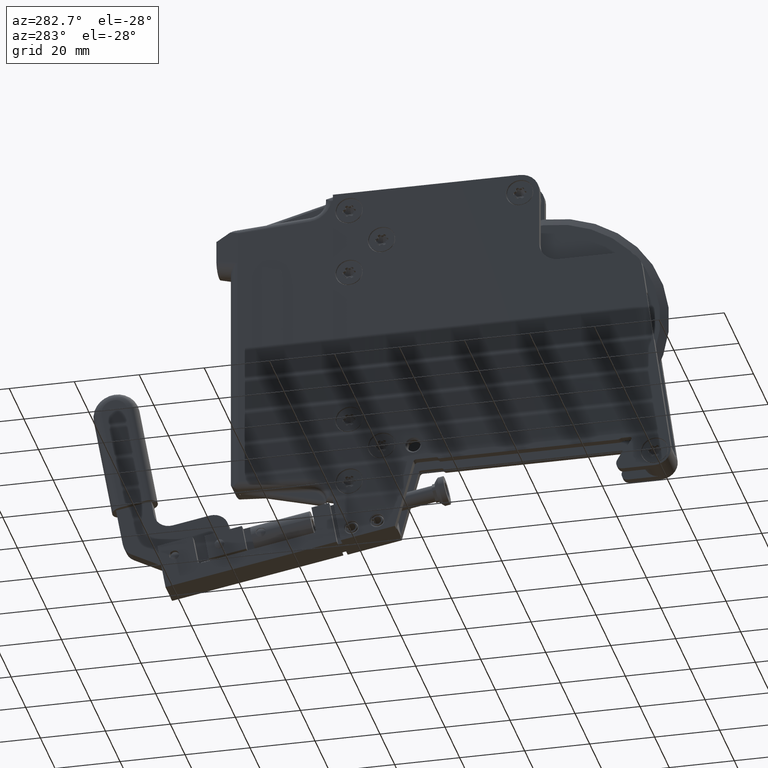
[diagram: clean part render]
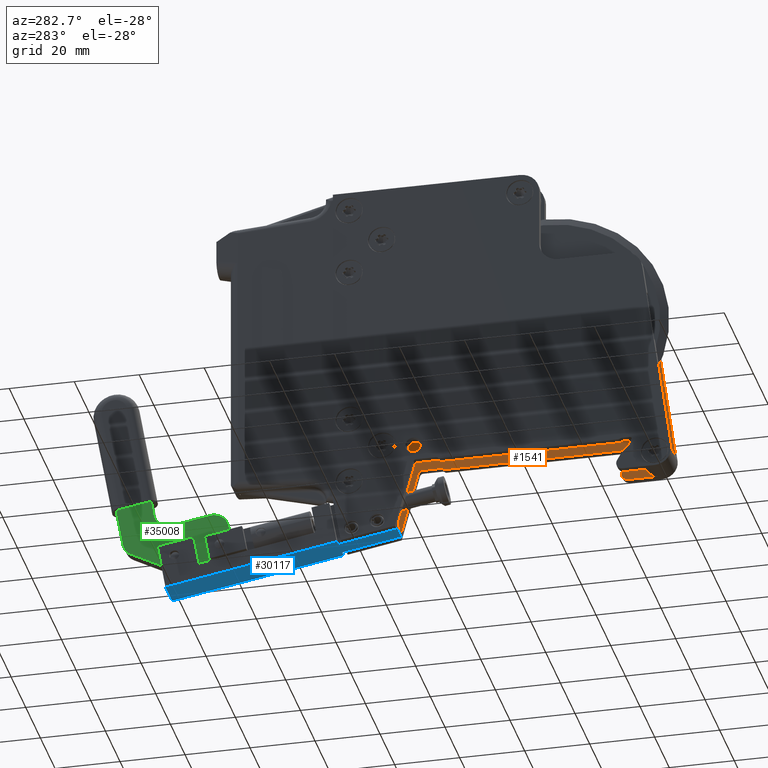
[diagram: same view with three faces highlighted in distinct colors, each labeled with its STEP entity id]
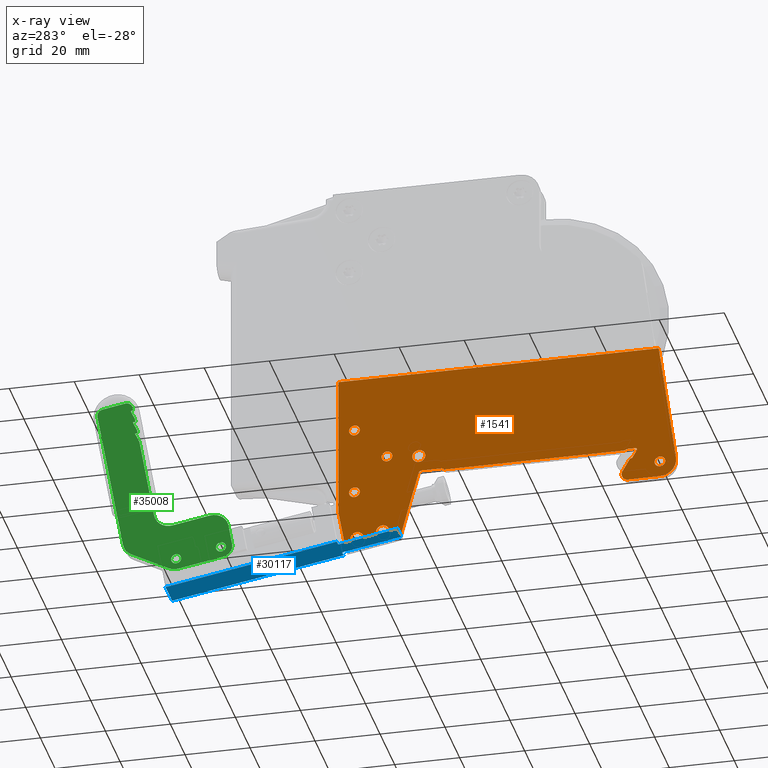
[diagram: x-ray of the same camera — body ghosted, the three highlighted faces saturated]
A machine part, auxiliary view with three faces highlighted in distinct colors.
The next image is the same camera in x-ray (body ghosted, the three faces saturated) — at least one of them is partly hidden behind the body in this view.
Their STEP definitions:

[orange] entity #1541 — the highlighted planar face has unit normal (-1, -0, 0).
#8 = ORIENTED_EDGE ( 'NONE', *, *, #22051, .F. ) ;
#268 = DIRECTION ( 'NONE',  ( 0.000000000000000000, 0.000000000000000000, 1.000000000000000000 ) ) ;
#385 = AXIS2_PLACEMENT_3D ( 'NONE', #3936, #27068, #30373 ) ;
#457 = DIRECTION ( 'NONE',  ( -1.000000000000000000, -0.000000000000000000, -0.000000000000000000 ) ) ;
#741 = CARTESIAN_POINT ( 'NONE',  ( 0.2889763779527562138, 0.6689019225503620714, -1.377952755905511362 ) ) ;
#758 = CARTESIAN_POINT ( 'NONE',  ( 0.2889763779527562693, 0.2856194123966036003, -1.643353580901476318 ) ) ;
#780 = CIRCLE ( 'NONE', #18923, 0.07874015748031448769 ) ;
#808 = CARTESIAN_POINT ( 'NONE',  ( 0.2889763779527562693, 0.01142160758973211065, -1.614173228346457156 ) ) ;
#904 = CARTESIAN_POINT ( 'NONE',  ( 0.2889763779527562693, 0.01142160758973210719, -1.653543307086614567 ) ) ;
#1005 = VECTOR ( 'NONE', #28239, 39.37007874015748143 ) ;
#1008 = VERTEX_POINT ( 'NONE', #20690 ) ;
#1045 = CARTESIAN_POINT ( 'NONE',  ( 0.2889763779527562693, -2.623945153298113731, -0.3149606299212593385 ) ) ;
#1067 = CIRCLE ( 'NONE', #28027, 0.06496062992125924140 ) ;
#1086 = CARTESIAN_POINT ( 'NONE',  ( 0.2889763779527562693, -2.638184691622865063, -2.027559055118111075 ) ) ;
#1212 = VECTOR ( 'NONE', #32743, 39.37007874015748143 ) ;
#1238 = CARTESIAN_POINT ( 'NONE',  ( 0.2889763779527562693, 0.2475908365584512660, -1.653543307086614567 ) ) ;
#1536 = CARTESIAN_POINT ( 'NONE',  ( 0.2889763779527562138, 1.062602709951936841, -0.9842519685039368138 ) ) ;
#1541 = ADVANCED_FACE ( 'NONE', ( #9224, #11978, #8856, #18199, #23943, #2540, #27039, #36033 ), #35852, .T. ) ;
#1778 = ORIENTED_EDGE ( 'NONE', *, *, #12190, .F. ) ;
#2306 = AXIS2_PLACEMENT_3D ( 'NONE', #22747, #31124, #36999 ) ;
#2540 = FACE_BOUND ( 'NONE', #22940, .T. ) ;
#2747 = ORIENTED_EDGE ( 'NONE', *, *, #15168, .F. ) ;
#2811 = VERTEX_POINT ( 'NONE', #4850 ) ;
#2992 = EDGE_CURVE ( 'NONE', #24464, #1008, #4977, .T. ) ;
#3785 = AXIS2_PLACEMENT_3D ( 'NONE', #33414, #457, #268 ) ;
#3936 = CARTESIAN_POINT ( 'NONE',  ( 0.2889763779527562693, -2.638184691622865063, -1.830708661417324024 ) ) ;
#4073 = LINE ( 'NONE', #1086, #8324 ) ;
#4108 = EDGE_LOOP ( 'NONE', ( #20633, #1778 ) ) ;
#4200 = LINE ( 'NONE', #4403, #9346 ) ;
#4294 = EDGE_CURVE ( 'NONE', #33097, #2811, #37797, .T. ) ;
#4353 = CARTESIAN_POINT ( 'NONE',  ( 0.2889763779527562693, 0.2475908365584514326, -0.3149606299212597271 ) ) ;
#4403 = CARTESIAN_POINT ( 'NONE',  ( 0.2889763779527562693, -2.202751620756724815, -1.633858267716535195 ) ) ;
#4410 = CIRCLE ( 'NONE', #3785, 0.06496062992125924140 ) ;
#4842 = EDGE_CURVE ( 'NONE', #14592, #24464, #4073, .T. ) ;
#4850 = CARTESIAN_POINT ( 'NONE',  ( 0.2889763779527562693, 0.2856194123966036558, -1.643353580901476318 ) ) ;
#4854 = VERTEX_POINT ( 'NONE', #35025 ) ;
#4932 = DIRECTION ( 'NONE',  ( -1.000000000000000000, -0.000000000000000000, -0.000000000000000000 ) ) ;
#4977 = CIRCLE ( 'NONE', #6225, 0.07874015748031476525 ) ;
#5161 = VERTEX_POINT ( 'NONE', #21453 ) ;
#5268 = EDGE_CURVE ( 'NONE', #13410, #33681, #26512, .T. ) ;
#5271 = VECTOR ( 'NONE', #16262, 39.37007874015748854 ) ;
#5406 = DIRECTION ( 'NONE',  ( 0.000000000000000000, 0.000000000000000000, 1.000000000000000000 ) ) ;
#5748 = DIRECTION ( 'NONE',  ( 0.000000000000000000, 0.000000000000000000, 1.000000000000000000 ) ) ;
#5907 = CARTESIAN_POINT ( 'NONE',  ( 0.2889763779527562138, 0.7223177986098473502, -2.451550973718666704 ) ) ;
#6003 = AXIS2_PLACEMENT_3D ( 'NONE', #33198, #21273, #21467 ) ;
#6037 = CARTESIAN_POINT ( 'NONE',  ( 0.2889763779527562693, 0.2475908365584510162, -1.614173228346457156 ) ) ;
#6210 = DIRECTION ( 'NONE',  ( -1.000000000000000000, -0.000000000000000000, -0.000000000000000000 ) ) ;
#6225 = AXIS2_PLACEMENT_3D ( 'NONE', #23208, #31780, #14393 ) ;
#6348 = CARTESIAN_POINT ( 'NONE',  ( 0.2889763779527562693, -2.486530308592621363, 0.6627967955023754687 ) ) ;
#6383 = VERTEX_POINT ( 'NONE', #18654 ) ;
#6418 = ORIENTED_EDGE ( 'NONE', *, *, #18498, .F. ) ;
#6750 = CIRCLE ( 'NONE', #9250, 0.06496062992125924140 ) ;
#6891 = CARTESIAN_POINT ( 'NONE',  ( 0.2889763779527562693, 1.259453103652724337, -2.047244094488188448 ) ) ;
#6897 = LINE ( 'NONE', #18238, #14403 ) ;
#6923 = VECTOR ( 'NONE', #22043, 39.37007874015748143 ) ;
#6971 = CARTESIAN_POINT ( 'NONE',  ( 0.2889763779527562138, 1.062602709951936841, -1.875984251968503269 ) ) ;
#7371 = ORIENTED_EDGE ( 'NONE', *, *, #38140, .F. ) ;
#7404 = CARTESIAN_POINT ( 'NONE',  ( 0.2889763779527562693, -2.202751620756724815, -1.633858267716535195 ) ) ;
#7481 = EDGE_LOOP ( 'NONE', ( #8814, #7568 ) ) ;
#7568 = ORIENTED_EDGE ( 'NONE', *, *, #35563, .F. ) ;
#7717 = VECTOR ( 'NONE', #21726, 39.37007874015748143 ) ;
#7751 = DIRECTION ( 'NONE',  ( 0.000000000000000000, 0.000000000000000000, 1.000000000000000000 ) ) ;
#7997 = AXIS2_PLACEMENT_3D ( 'NONE', #9801, #10000, #18385 ) ;
#8042 = VERTEX_POINT ( 'NONE', #28019 ) ;
#8324 = VECTOR ( 'NONE', #13127, 39.37007874015748143 ) ;
#8380 = CARTESIAN_POINT ( 'NONE',  ( 0.2889763779527562138, 0.6689019225503620714, -1.312992125984252079 ) ) ;
#8455 = EDGE_CURVE ( 'NONE', #20851, #32388, #19563, .T. ) ;
#8631 = ORIENTED_EDGE ( 'NONE', *, *, #4842, .F. ) ;
#8635 = LINE ( 'NONE', #26446, #16686 ) ;
#8676 = CARTESIAN_POINT ( 'NONE',  ( 0.2889763779527562138, 0.7223177986098473502, -2.294070658758037506 ) ) ;
#8814 = ORIENTED_EDGE ( 'NONE', *, *, #36766, .F. ) ;
#8850 = EDGE_CURVE ( 'NONE', #13885, #8042, #9788, .T. ) ;
#8856 = FACE_BOUND ( 'NONE', #4108, .T. ) ;
#8904 = CARTESIAN_POINT ( 'NONE',  ( 0.2889763779527562693, -2.301608388249768211, -1.744763279453062088 ) ) ;
#9043 = DIRECTION ( 'NONE',  ( 0.000000000000000000, 0.000000000000000000, 1.000000000000000000 ) ) ;
#9224 = FACE_BOUND ( 'NONE', #29717, .T. ) ;
#9250 = AXIS2_PLACEMENT_3D ( 'NONE', #30185, #12376, #36626 ) ;
#9264 = DIRECTION ( 'NONE',  ( -0.000000000000000000, 0.9848077530122085754, -0.1736481776669268062 ) ) ;
#9321 = VERTEX_POINT ( 'NONE', #10682 ) ;
#9346 = VECTOR ( 'NONE', #30636, 39.37007874015748854 ) ;
#9482 = VERTEX_POINT ( 'NONE', #21408 ) ;
#9654 = VERTEX_POINT ( 'NONE', #23524 ) ;
#9788 = LINE ( 'NONE', #7404, #7717 ) ;
#9801 = CARTESIAN_POINT ( 'NONE',  ( 0.2889763779527562138, 0.7223177986098473502, -2.372810816238352327 ) ) ;
#9853 = DIRECTION ( 'NONE',  ( -1.000000000000000000, -0.000000000000000000, -0.000000000000000000 ) ) ;
#9869 = VERTEX_POINT ( 'NONE', #808 ) ;
#9925 = CARTESIAN_POINT ( 'NONE',  ( 0.2889763779527562138, 1.062602709951936841, -1.746062992125984925 ) ) ;
#9927 = ORIENTED_EDGE ( 'NONE', *, *, #13558, .F. ) ;
#10000 = DIRECTION ( 'NONE',  ( -1.000000000000000000, -0.000000000000000000, -0.000000000000000000 ) ) ;
#10047 = CARTESIAN_POINT ( 'NONE',  ( 0.2889763779527562693, -2.274718124395743502, -1.751968503937007871 ) ) ;
#10396 = ORIENTED_EDGE ( 'NONE', *, *, #2992, .F. ) ;
#10435 = DIRECTION ( 'NONE',  ( 0.000000000000000000, -0.1391731009600580549, -0.9902680687415712502 ) ) ;
#10565 = VERTEX_POINT ( 'NONE', #9925 ) ;
#10647 = EDGE_CURVE ( 'NONE', #1008, #34249, #10894, .T. ) ;
#10682 = CARTESIAN_POINT ( 'NONE',  ( 0.2889763779527562693, -2.340636068515820067, -1.618110236220472453 ) ) ;
#10699 = DIRECTION ( 'NONE',  ( -1.000000000000000000, -0.000000000000000000, -0.000000000000000000 ) ) ;
#10894 = LINE ( 'NONE', #31424, #30286 ) ;
#11514 = VERTEX_POINT ( 'NONE', #6971 ) ;
#11721 = ORIENTED_EDGE ( 'NONE', *, *, #20412, .F. ) ;
#11839 = LINE ( 'NONE', #8904, #34574 ) ;
#11978 = FACE_BOUND ( 'NONE', #24182, .T. ) ;
#12027 = DIRECTION ( 'NONE',  ( 0.000000000000000000, -0.5000000000000088818, 0.8660254037844336006 ) ) ;
#12121 = CIRCLE ( 'NONE', #15209, 0.07874015748031448769 ) ;
#12190 = EDGE_CURVE ( 'NONE', #31608, #9482, #15485, .T. ) ;
#12195 = EDGE_LOOP ( 'NONE', ( #7371, #29761, #14352, #35822, #6418, #33977, #9927, #15316, #17777, #26138, #11721, #25547, #31510, #14916, #36954, #10396, #8631, #17247, #27770 ) ) ;
#12370 = VECTOR ( 'NONE', #5406, 39.37007874015748143 ) ;
#12372 = LINE ( 'NONE', #20818, #1212 ) ;
#12376 = DIRECTION ( 'NONE',  ( -1.000000000000000000, -0.000000000000000000, -0.000000000000000000 ) ) ;
#12409 = CARTESIAN_POINT ( 'NONE',  ( 0.2889763779527562138, 1.062602709951936841, -1.811023622047244208 ) ) ;
#12489 = CARTESIAN_POINT ( 'NONE',  ( 0.2889763779527562693, -2.340636068515820067, -1.637795275590551158 ) ) ;
#12578 = CARTESIAN_POINT ( 'NONE',  ( 0.2889763779527562138, 1.062602709951936841, -0.9192913385826774197 ) ) ;
#12734 = CARTESIAN_POINT ( 'NONE',  ( 0.2889763779527562693, -2.251987798837095767, -2.027559055118109743 ) ) ;
#12893 = EDGE_CURVE ( 'NONE', #37586, #13885, #4200, .T. ) ;
#12920 = DIRECTION ( 'NONE',  ( 0.000000000000000000, 0.000000000000000000, 1.000000000000000000 ) ) ;
#13127 = DIRECTION ( 'NONE',  ( 0.000000000000000000, 1.000000000000000000, 2.122115463404056574E-15 ) ) ;
#13208 = EDGE_CURVE ( 'NONE', #10565, #11514, #1067, .T. ) ;
#13311 = EDGE_CURVE ( 'NONE', #36682, #34480, #31858, .T. ) ;
#13410 = VERTEX_POINT ( 'NONE', #36329 ) ;
#13558 = EDGE_CURVE ( 'NONE', #9869, #33097, #23031, .T. ) ;
#13629 = CIRCLE ( 'NONE', #7997, 0.07874015748031448769 ) ;
#13631 = DIRECTION ( 'NONE',  ( 0.000000000000000000, -0.5000000000000045519, 0.8660254037844359321 ) ) ;
#13885 = VERTEX_POINT ( 'NONE', #28813 ) ;
#14123 = ORIENTED_EDGE ( 'NONE', *, *, #17944, .F. ) ;
#14126 = VECTOR ( 'NONE', #10435, 39.37007874015748854 ) ;
#14352 = ORIENTED_EDGE ( 'NONE', *, *, #29832, .F. ) ;
#14393 = DIRECTION ( 'NONE',  ( 0.000000000000000000, 0.000000000000000000, -1.000000000000000000 ) ) ;
#14403 = VECTOR ( 'NONE', #9264, 39.37007874015748854 ) ;
#14592 = VERTEX_POINT ( 'NONE', #22354 ) ;
#14641 = VERTEX_POINT ( 'NONE', #19973 ) ;
#14880 = AXIS2_PLACEMENT_3D ( 'NONE', #29382, #20597, #9043 ) ;
#14916 = ORIENTED_EDGE ( 'NONE', *, *, #33821, .F. ) ;
#15153 = ORIENTED_EDGE ( 'NONE', *, *, #13208, .F. ) ;
#15168 = EDGE_CURVE ( 'NONE', #11514, #10565, #4410, .T. ) ;
#15209 = AXIS2_PLACEMENT_3D ( 'NONE', #30661, #25039, #34388 ) ;
#15224 = EDGE_CURVE ( 'NONE', #9654, #9321, #33173, .T. ) ;
#15257 = CARTESIAN_POINT ( 'NONE',  ( 0.2889763779527562693, -2.274718124395743502, -1.751968503937007871 ) ) ;
#15316 = ORIENTED_EDGE ( 'NONE', *, *, #17609, .F. ) ;
#15485 = CIRCLE ( 'NONE', #34256, 0.07874015748031448769 ) ;
#15680 = AXIS2_PLACEMENT_3D ( 'NONE', #12489, #6210, #36366 ) ;
#16221 = CARTESIAN_POINT ( 'NONE',  ( 0.2889763779527562138, 0.2830751508968187835, -1.417322834645668994 ) ) ;
#16262 = DIRECTION ( 'NONE',  ( 0.000000000000000000, -0.9659258262890678681, 0.2588190451025223493 ) ) ;
#16290 = LINE ( 'NONE', #758, #1005 ) ;
#16321 = DIRECTION ( 'NONE',  ( -1.000000000000000000, -0.000000000000000000, -0.000000000000000000 ) ) ;
#16473 = CARTESIAN_POINT ( 'NONE',  ( 0.2889763779527562693, -2.833119350823961380, -1.803312381700776124 ) ) ;
#16686 = VECTOR ( 'NONE', #23546, 39.37007874015748143 ) ;
#16702 = CIRCLE ( 'NONE', #2306, 0.06496062992125924140 ) ;
#16855 = EDGE_CURVE ( 'NONE', #26005, #6383, #12121, .T. ) ;
#17247 = ORIENTED_EDGE ( 'NONE', *, *, #35653, .F. ) ;
#17609 = EDGE_CURVE ( 'NONE', #8042, #9869, #34822, .T. ) ;
#17777 = ORIENTED_EDGE ( 'NONE', *, *, #8850, .F. ) ;
#17924 = AXIS2_PLACEMENT_3D ( 'NONE', #904, #37186, #31508 ) ;
#17944 = EDGE_CURVE ( 'NONE', #28964, #26622, #30382, .T. ) ;
#18180 = DIRECTION ( 'NONE',  ( 0.000000000000000000, 0.000000000000000000, 1.000000000000000000 ) ) ;
#18199 = FACE_BOUND ( 'NONE', #26108, .T. ) ;
#18219 = VERTEX_POINT ( 'NONE', #23024 ) ;
#18238 = CARTESIAN_POINT ( 'NONE',  ( 0.2889763779527562693, 1.163653405472534486, -2.590551181102362044 ) ) ;
#18385 = DIRECTION ( 'NONE',  ( 0.000000000000000000, 0.000000000000000000, 1.000000000000000000 ) ) ;
#18498 = EDGE_CURVE ( 'NONE', #2811, #18219, #16290, .T. ) ;
#18573 = VERTEX_POINT ( 'NONE', #16473 ) ;
#18583 = DIRECTION ( 'NONE',  ( -1.000000000000000000, -0.000000000000000000, -0.000000000000000000 ) ) ;
#18654 = CARTESIAN_POINT ( 'NONE',  ( 0.2889763779527562138, 0.2830751508968187835, -1.496062992125983371 ) ) ;
#18776 = ORIENTED_EDGE ( 'NONE', *, *, #24770, .F. ) ;
#18923 = AXIS2_PLACEMENT_3D ( 'NONE', #27021, #21142, #18180 ) ;
#19563 = CIRCLE ( 'NONE', #37692, 0.07874015748031448769 ) ;
#19837 = CARTESIAN_POINT ( 'NONE',  ( 0.2889763779527562138, -2.638184691622866396, -1.895669291338582196 ) ) ;
#19953 = CIRCLE ( 'NONE', #31175, 0.07874015748031448769 ) ;
#19973 = CARTESIAN_POINT ( 'NONE',  ( 0.2889763779527562138, 0.6689019225503620714, -1.442913385826770645 ) ) ;
#20412 = EDGE_CURVE ( 'NONE', #9321, #37586, #12372, .T. ) ;
#20597 = DIRECTION ( 'NONE',  ( -1.000000000000000000, -0.000000000000000000, 0.000000000000000000 ) ) ;
#20633 = ORIENTED_EDGE ( 'NONE', *, *, #26426, .F. ) ;
#20690 = CARTESIAN_POINT ( 'NONE',  ( 0.2889763779527562693, -2.183796822161156115, -1.909448818897637290 ) ) ;
#20818 = CARTESIAN_POINT ( 'NONE',  ( 0.2889763779527562693, -2.340636068515820067, -1.618110236220472453 ) ) ;
#20851 = VERTEX_POINT ( 'NONE', #8676 ) ;
#21142 = DIRECTION ( 'NONE',  ( -1.000000000000000000, -0.000000000000000000, -0.000000000000000000 ) ) ;
#21273 = DIRECTION ( 'NONE',  ( -1.000000000000000000, -0.000000000000000000, -0.000000000000000000 ) ) ;
#21408 = CARTESIAN_POINT ( 'NONE',  ( 0.2889763779527562138, 1.032493468849913221, -2.348762998180691675 ) ) ;
#21453 = CARTESIAN_POINT ( 'NONE',  ( 0.2889763779527562693, 1.163653405472534486, -2.590551181102362044 ) ) ;
#21467 = DIRECTION ( 'NONE',  ( 0.000000000000000000, 0.000000000000000000, 1.000000000000000000 ) ) ;
#21726 = DIRECTION ( 'NONE',  ( 0.000000000000000000, 1.000000000000000000, 0.000000000000000000 ) ) ;
#21974 = ORIENTED_EDGE ( 'NONE', *, *, #16855, .F. ) ;
#22043 = DIRECTION ( 'NONE',  ( 0.000000000000000000, -1.000000000000000000, 1.293946271955896930E-16 ) ) ;
#22051 = EDGE_CURVE ( 'NONE', #33681, #13410, #16702, .T. ) ;
#22354 = CARTESIAN_POINT ( 'NONE',  ( 0.2889763779527562693, -2.638184691622865063, -2.027559055118111075 ) ) ;
#22636 = CARTESIAN_POINT ( 'NONE',  ( 0.2889763779527562138, -2.638184691622866396, -1.830708661417322913 ) ) ;
#22655 = CARTESIAN_POINT ( 'NONE',  ( 0.2889763779527562693, 0.01142160758973210719, -1.614173228346457156 ) ) ;
#22747 = CARTESIAN_POINT ( 'NONE',  ( 0.2889763779527562138, -2.638184691622866396, -1.830708661417322913 ) ) ;
#22835 = ORIENTED_EDGE ( 'NONE', *, *, #30714, .F. ) ;
#22940 = EDGE_LOOP ( 'NONE', ( #15153, #2747 ) ) ;
#23024 = CARTESIAN_POINT ( 'NONE',  ( 0.2889763779527562693, 0.5084647614241869507, -2.475023745702846334 ) ) ;
#23031 = LINE ( 'NONE', #22655, #34270 ) ;
#23208 = CARTESIAN_POINT ( 'NONE',  ( 0.2889763779527562693, -2.251987798837095767, -1.948818897637795367 ) ) ;
#23273 = EDGE_CURVE ( 'NONE', #18219, #5161, #6897, .T. ) ;
#23524 = CARTESIAN_POINT ( 'NONE',  ( 0.2889763779527562693, -2.357683812684805424, -1.647637795275591177 ) ) ;
#23546 = DIRECTION ( 'NONE',  ( 0.000000000000000000, 0.1736481776669307475, 0.9848077530122080203 ) ) ;
#23791 = VERTEX_POINT ( 'NONE', #8380 ) ;
#23943 = FACE_OUTER_BOUND ( 'NONE', #12195, .T. ) ;
#24182 = EDGE_LOOP ( 'NONE', ( #21974, #22835 ) ) ;
#24464 = VERTEX_POINT ( 'NONE', #12734 ) ;
#24770 = EDGE_CURVE ( 'NONE', #26622, #28964, #31941, .T. ) ;
#25039 = DIRECTION ( 'NONE',  ( -1.000000000000000000, -0.000000000000000000, -0.000000000000000000 ) ) ;
#25169 = LINE ( 'NONE', #4353, #6923 ) ;
#25188 = ORIENTED_EDGE ( 'NONE', *, *, #29988, .F. ) ;
#25310 = LINE ( 'NONE', #6348, #14126 ) ;
#25547 = ORIENTED_EDGE ( 'NONE', *, *, #15224, .F. ) ;
#25560 = CARTESIAN_POINT ( 'NONE',  ( 0.2889763779527562138, 0.7223177986098473502, -2.372810816238352327 ) ) ;
#25661 = ORIENTED_EDGE ( 'NONE', *, *, #5268, .F. ) ;
#25698 = DIRECTION ( 'NONE',  ( -1.000000000000000000, -0.000000000000000000, -0.000000000000000000 ) ) ;
#25726 = DIRECTION ( 'NONE',  ( 0.000000000000000000, 0.000000000000000000, 1.000000000000000000 ) ) ;
#25733 = EDGE_CURVE ( 'NONE', #4854, #9654, #11839, .T. ) ;
#26005 = VERTEX_POINT ( 'NONE', #33823 ) ;
#26108 = EDGE_LOOP ( 'NONE', ( #26126, #25188 ) ) ;
#26126 = ORIENTED_EDGE ( 'NONE', *, *, #8455, .F. ) ;
#26138 = ORIENTED_EDGE ( 'NONE', *, *, #12893, .F. ) ;
#26426 = EDGE_CURVE ( 'NONE', #9482, #31608, #780, .T. ) ;
#26446 = CARTESIAN_POINT ( 'NONE',  ( 0.2889763779527562693, 1.163653405472534486, -2.590551181102362044 ) ) ;
#26512 = CIRCLE ( 'NONE', #35896, 0.06496062992125924140 ) ;
#26622 = VERTEX_POINT ( 'NONE', #35349 ) ;
#27021 = CARTESIAN_POINT ( 'NONE',  ( 0.2889763779527562138, 1.032493468849913221, -2.427503155661006051 ) ) ;
#27039 = FACE_BOUND ( 'NONE', #7481, .T. ) ;
#27068 = DIRECTION ( 'NONE',  ( 1.000000000000000000, 0.000000000000000000, 0.000000000000000000 ) ) ;
#27277 = DIRECTION ( 'NONE',  ( -1.000000000000000000, -0.000000000000000000, -0.000000000000000000 ) ) ;
#27630 = EDGE_CURVE ( 'NONE', #37393, #18573, #25310, .T. ) ;
#27770 = ORIENTED_EDGE ( 'NONE', *, *, #27630, .F. ) ;
#28019 = CARTESIAN_POINT ( 'NONE',  ( 0.2889763779527562693, -0.02267388074823777078, -1.633858267716535195 ) ) ;
#28027 = AXIS2_PLACEMENT_3D ( 'NONE', #12409, #27277, #5748 ) ;
#28239 = DIRECTION ( 'NONE',  ( 0.000000000000000000, 0.2588190451025181305, -0.9659258262890689783 ) ) ;
#28435 = EDGE_LOOP ( 'NONE', ( #14123, #18776 ) ) ;
#28500 = DIRECTION ( 'NONE',  ( -1.000000000000000000, -0.000000000000000000, 0.000000000000000000 ) ) ;
#28527 = CIRCLE ( 'NONE', #385, 0.1968503937007870241 ) ;
#28813 = CARTESIAN_POINT ( 'NONE',  ( 0.2889763779527562693, -2.202751620756724815, -1.633858267716535195 ) ) ;
#28964 = VERTEX_POINT ( 'NONE', #12578 ) ;
#29013 = CARTESIAN_POINT ( 'NONE',  ( 0.2889763779527562138, 1.032493468849913221, -2.427503155661006051 ) ) ;
#29104 = CARTESIAN_POINT ( 'NONE',  ( 0.2889763779527562693, 1.259453103652724337, -2.047244094488188448 ) ) ;
#29169 = CARTESIAN_POINT ( 'NONE',  ( 0.2889763779527562138, 1.032493468849913221, -2.506243313141320872 ) ) ;
#29244 = DIRECTION ( 'NONE',  ( 0.000000000000000000, 1.000000000000000000, 0.000000000000000000 ) ) ;
#29382 = CARTESIAN_POINT ( 'NONE',  ( 0.2889763779527562693, 0.2475908365584512660, -1.653543307086614567 ) ) ;
#29717 = EDGE_LOOP ( 'NONE', ( #25661, #8 ) ) ;
#29761 = ORIENTED_EDGE ( 'NONE', *, *, #13311, .F. ) ;
#29832 = EDGE_CURVE ( 'NONE', #5161, #36682, #8635, .T. ) ;
#29988 = EDGE_CURVE ( 'NONE', #32388, #20851, #13629, .T. ) ;
#30185 = CARTESIAN_POINT ( 'NONE',  ( 0.2889763779527562138, 0.6689019225503620714, -1.377952755905511362 ) ) ;
#30286 = VECTOR ( 'NONE', #13631, 39.37007874015748854 ) ;
#30373 = DIRECTION ( 'NONE',  ( 0.000000000000000000, 0.000000000000000000, -1.000000000000000000 ) ) ;
#30382 = CIRCLE ( 'NONE', #6003, 0.06496062992125938018 ) ;
#30383 = AXIS2_PLACEMENT_3D ( 'NONE', #741, #9853, #35882 ) ;
#30636 = DIRECTION ( 'NONE',  ( -0.000000000000000000, 0.9205048534524431503, -0.3907311284892670544 ) ) ;
#30661 = CARTESIAN_POINT ( 'NONE',  ( 0.2889763779527562138, 0.2830751508968187835, -1.417322834645668994 ) ) ;
#30714 = EDGE_CURVE ( 'NONE', #6383, #26005, #19953, .T. ) ;
#30856 = DIRECTION ( 'NONE',  ( 0.000000000000000000, 0.000000000000000000, 1.000000000000000000 ) ) ;
#31124 = DIRECTION ( 'NONE',  ( -1.000000000000000000, -0.000000000000000000, -0.000000000000000000 ) ) ;
#31175 = AXIS2_PLACEMENT_3D ( 'NONE', #16221, #18583, #12920 ) ;
#31361 = DIRECTION ( 'NONE',  ( 0.000000000000000000, 0.000000000000000000, 1.000000000000000000 ) ) ;
#31424 = CARTESIAN_POINT ( 'NONE',  ( 0.2889763779527562693, -2.183796822161156115, -1.909448818897637290 ) ) ;
#31508 = DIRECTION ( 'NONE',  ( 0.000000000000000000, 0.000000000000000000, -1.000000000000000000 ) ) ;
#31510 = ORIENTED_EDGE ( 'NONE', *, *, #25733, .F. ) ;
#31608 = VERTEX_POINT ( 'NONE', #29169 ) ;
#31780 = DIRECTION ( 'NONE',  ( 1.000000000000000000, 0.000000000000000000, 0.000000000000000000 ) ) ;
#31858 = LINE ( 'NONE', #29104, #12370 ) ;
#31941 = CIRCLE ( 'NONE', #37559, 0.06496062992125938018 ) ;
#32388 = VERTEX_POINT ( 'NONE', #5907 ) ;
#32743 = DIRECTION ( 'NONE',  ( 0.000000000000000000, 1.000000000000000000, 0.000000000000000000 ) ) ;
#32799 = CARTESIAN_POINT ( 'NONE',  ( 0.2889763779527562693, -2.239851658013792157, -1.618110236220472453 ) ) ;
#33097 = VERTEX_POINT ( 'NONE', #6037 ) ;
#33173 = CIRCLE ( 'NONE', #15680, 0.01968503937007875723 ) ;
#33198 = CARTESIAN_POINT ( 'NONE',  ( 0.2889763779527562138, 1.062602709951936841, -0.9842519685039368138 ) ) ;
#33216 = CARTESIAN_POINT ( 'NONE',  ( 0.2889763779527562693, 1.259453103652724337, -0.3149606299212597826 ) ) ;
#33414 = CARTESIAN_POINT ( 'NONE',  ( 0.2889763779527562138, 1.062602709951936841, -1.811023622047244208 ) ) ;
#33681 = VERTEX_POINT ( 'NONE', #19837 ) ;
#33821 = EDGE_CURVE ( 'NONE', #34249, #4854, #36814, .T. ) ;
#33823 = CARTESIAN_POINT ( 'NONE',  ( 0.2889763779527562138, 0.2830751508968187835, -1.338582677165354395 ) ) ;
#33950 = DIRECTION ( 'NONE',  ( 0.000000000000000000, 0.000000000000000000, 1.000000000000000000 ) ) ;
#33977 = ORIENTED_EDGE ( 'NONE', *, *, #4294, .F. ) ;
#34018 = AXIS2_PLACEMENT_3D ( 'NONE', #1238, #28500, #30856 ) ;
#34249 = VERTEX_POINT ( 'NONE', #15257 ) ;
#34256 = AXIS2_PLACEMENT_3D ( 'NONE', #29013, #4932, #25726 ) ;
#34270 = VECTOR ( 'NONE', #29244, 39.37007874015748143 ) ;
#34388 = DIRECTION ( 'NONE',  ( 0.000000000000000000, 0.000000000000000000, 1.000000000000000000 ) ) ;
#34480 = VERTEX_POINT ( 'NONE', #33216 ) ;
#34574 = VECTOR ( 'NONE', #12027, 39.37007874015748143 ) ;
#34822 = CIRCLE ( 'NONE', #17924, 0.03937007874015751446 ) ;
#35025 = CARTESIAN_POINT ( 'NONE',  ( 0.2889763779527562693, -2.301608388249768211, -1.744763279453062088 ) ) ;
#35349 = CARTESIAN_POINT ( 'NONE',  ( 0.2889763779527562138, 1.062602709951936841, -1.049212598425196097 ) ) ;
#35563 = EDGE_CURVE ( 'NONE', #14641, #23791, #38535, .T. ) ;
#35653 = EDGE_CURVE ( 'NONE', #18573, #14592, #28527, .T. ) ;
#35822 = ORIENTED_EDGE ( 'NONE', *, *, #23273, .F. ) ;
#35852 = PLANE ( 'NONE',  #14880 ) ;
#35882 = DIRECTION ( 'NONE',  ( 0.000000000000000000, 0.000000000000000000, 1.000000000000000000 ) ) ;
#35896 = AXIS2_PLACEMENT_3D ( 'NONE', #22636, #16321, #33950 ) ;
#36033 = FACE_BOUND ( 'NONE', #28435, .T. ) ;
#36329 = CARTESIAN_POINT ( 'NONE',  ( 0.2889763779527562138, -2.638184691622866396, -1.765748031496063630 ) ) ;
#36366 = DIRECTION ( 'NONE',  ( 0.000000000000000000, 0.000000000000000000, -1.000000000000000000 ) ) ;
#36626 = DIRECTION ( 'NONE',  ( 0.000000000000000000, 0.000000000000000000, 1.000000000000000000 ) ) ;
#36682 = VERTEX_POINT ( 'NONE', #6891 ) ;
#36766 = EDGE_CURVE ( 'NONE', #23791, #14641, #6750, .T. ) ;
#36814 = LINE ( 'NONE', #10047, #5271 ) ;
#36954 = ORIENTED_EDGE ( 'NONE', *, *, #10647, .F. ) ;
#36999 = DIRECTION ( 'NONE',  ( 0.000000000000000000, 0.000000000000000000, 1.000000000000000000 ) ) ;
#37186 = DIRECTION ( 'NONE',  ( -1.000000000000000000, -0.000000000000000000, -0.000000000000000000 ) ) ;
#37393 = VERTEX_POINT ( 'NONE', #1045 ) ;
#37559 = AXIS2_PLACEMENT_3D ( 'NONE', #1536, #25698, #31361 ) ;
#37586 = VERTEX_POINT ( 'NONE', #32799 ) ;
#37692 = AXIS2_PLACEMENT_3D ( 'NONE', #25560, #10699, #7751 ) ;
#37797 = CIRCLE ( 'NONE', #34018, 0.03937007874015751446 ) ;
#38140 = EDGE_CURVE ( 'NONE', #34480, #37393, #25169, .T. ) ;
#38535 = CIRCLE ( 'NONE', #30383, 0.06496062992125924140 ) ;

[blue] entity #30117 — the highlighted planar face has unit normal (0, 0.1736, 0.9848).
#242 = VECTOR ( 'NONE', #10254, 39.37007874015748143 ) ;
#1510 = EDGE_LOOP ( 'NONE', ( #22357, #31478, #8227, #9534, #20444, #13726, #5024, #2413 ) ) ;
#2413 = ORIENTED_EDGE ( 'NONE', *, *, #11391, .T. ) ;
#2659 = DIRECTION ( 'NONE',  ( 1.000000000000000000, -0.000000000000000000, -1.224646799147353207E-16 ) ) ;
#3583 = CARTESIAN_POINT ( 'NONE',  ( 0.3637795275590550159, 3.288356746616985404, -2.965193706147537966 ) ) ;
#4011 = VERTEX_POINT ( 'NONE', #34616 ) ;
#4839 = LINE ( 'NONE', #37942, #37655 ) ;
#5024 = ORIENTED_EDGE ( 'NONE', *, *, #22378, .F. ) ;
#5177 = EDGE_CURVE ( 'NONE', #21769, #38793, #38670, .T. ) ;
#5450 = LINE ( 'NONE', #28954, #6996 ) ;
#5503 = VECTOR ( 'NONE', #21813, 39.37007874015748143 ) ;
#6234 = CARTESIAN_POINT ( 'NONE',  ( 0.2889763779527558252, 1.214056951886545832, -2.599438686258543019 ) ) ;
#6996 = VECTOR ( 'NONE', #32082, 39.37007874015748143 ) ;
#7942 = EDGE_CURVE ( 'NONE', #30737, #33346, #27234, .T. ) ;
#8227 = ORIENTED_EDGE ( 'NONE', *, *, #33163, .F. ) ;
#8936 = DIRECTION ( 'NONE',  ( 2.126576849575703506E-17, -0.9848077530122091305, 0.1736481776669247801 ) ) ;
#9474 = CARTESIAN_POINT ( 'NONE',  ( 0.009448818897637684122, 3.288356746616985404, -2.965193706147537966 ) ) ;
#9534 = ORIENTED_EDGE ( 'NONE', *, *, #7942, .F. ) ;
#9544 = LINE ( 'NONE', #14836, #35413 ) ;
#10254 = DIRECTION ( 'NONE',  ( 1.000000000000000000, -0.000000000000000000, -1.224646799147353207E-16 ) ) ;
#10836 = EDGE_CURVE ( 'NONE', #33070, #38793, #13778, .T. ) ;
#11391 = EDGE_CURVE ( 'NONE', #4011, #21769, #9544, .T. ) ;
#13185 = LINE ( 'NONE', #9474, #5503 ) ;
#13726 = ORIENTED_EDGE ( 'NONE', *, *, #15155, .T. ) ;
#13778 = LINE ( 'NONE', #31178, #242 ) ;
#14534 = CARTESIAN_POINT ( 'NONE',  ( 0.2889763779527558252, 0.4967757144563934579, -2.472962651343656670 ) ) ;
#14836 = CARTESIAN_POINT ( 'NONE',  ( 0.009448818897637684122, 3.288356746616985404, -2.965193706147537966 ) ) ;
#15087 = EDGE_CURVE ( 'NONE', #30940, #30737, #17372, .T. ) ;
#15155 = EDGE_CURVE ( 'NONE', #30940, #34157, #5450, .T. ) ;
#16026 = CARTESIAN_POINT ( 'NONE',  ( 0.08425196850393695813, 0.4967757144563934579, -2.472962651343656670 ) ) ;
#16479 = VECTOR ( 'NONE', #8936, 39.37007874015748143 ) ;
#17372 = LINE ( 'NONE', #22927, #19496 ) ;
#17937 = CARTESIAN_POINT ( 'NONE',  ( 0.009448818897637684122, 3.288356746616985404, -2.965193706147537966 ) ) ;
#19496 = VECTOR ( 'NONE', #28752, 39.37007874015748143 ) ;
#20444 = ORIENTED_EDGE ( 'NONE', *, *, #15087, .F. ) ;
#21769 = VERTEX_POINT ( 'NONE', #34878 ) ;
#21813 = DIRECTION ( 'NONE',  ( 2.126576849575703506E-17, -0.9848077530122091305, 0.1736481776669247801 ) ) ;
#22357 = ORIENTED_EDGE ( 'NONE', *, *, #5177, .T. ) ;
#22378 = EDGE_CURVE ( 'NONE', #4011, #34157, #13185, .T. ) ;
#22927 = CARTESIAN_POINT ( 'NONE',  ( 0.08425196850393695813, 1.214056951886545832, -2.599438686258543019 ) ) ;
#23300 = DIRECTION ( 'NONE',  ( -2.126576849575703506E-17, 0.9848077530122091305, -0.1736481776669247801 ) ) ;
#25639 = CARTESIAN_POINT ( 'NONE',  ( 0.08425196850393695813, 1.214056951886545832, -2.599438686258543019 ) ) ;
#27234 = LINE ( 'NONE', #30946, #38254 ) ;
#28752 = DIRECTION ( 'NONE',  ( 2.126576849575702890E-17, -0.9848077530122091305, 0.1736481776669247246 ) ) ;
#28936 = DIRECTION ( 'NONE',  ( -2.126576849575703814E-17, 0.9848077530122091305, -0.1736481776669248078 ) ) ;
#28954 = CARTESIAN_POINT ( 'NONE',  ( 0.08425196850393695813, 1.214056951886545832, -2.599438686258543019 ) ) ;
#30117 = ADVANCED_FACE ( 'NONE', ( #35601 ), #32643, .F. ) ;
#30737 = VERTEX_POINT ( 'NONE', #16026 ) ;
#30940 = VERTEX_POINT ( 'NONE', #25639 ) ;
#30946 = CARTESIAN_POINT ( 'NONE',  ( 0.009448818897637751776, 0.4967757144563934579, -2.472962651343656670 ) ) ;
#31178 = CARTESIAN_POINT ( 'NONE',  ( 0.2889763779527558252, 1.214056951886545832, -2.599438686258543019 ) ) ;
#31478 = ORIENTED_EDGE ( 'NONE', *, *, #10836, .F. ) ;
#32082 = DIRECTION ( 'NONE',  ( -1.000000000000000000, 0.000000000000000000, 1.224646799147353207E-16 ) ) ;
#32643 = PLANE ( 'NONE',  #35520 ) ;
#32836 = DIRECTION ( 'NONE',  ( 1.206041662501898854E-16, 0.1736481776669247801, 0.9848077530122091305 ) ) ;
#33070 = VERTEX_POINT ( 'NONE', #6234 ) ;
#33163 = EDGE_CURVE ( 'NONE', #33346, #33070, #4839, .T. ) ;
#33293 = DIRECTION ( 'NONE',  ( 1.000000000000000000, -0.000000000000000000, -1.224646799147353207E-16 ) ) ;
#33346 = VERTEX_POINT ( 'NONE', #14534 ) ;
#33474 = CARTESIAN_POINT ( 'NONE',  ( 0.3637795275590550714, 1.214056951886545832, -2.599438686258543019 ) ) ;
#34022 = CARTESIAN_POINT ( 'NONE',  ( 0.009448818897637751776, 1.214056951886545832, -2.599438686258543019 ) ) ;
#34157 = VERTEX_POINT ( 'NONE', #34022 ) ;
#34616 = CARTESIAN_POINT ( 'NONE',  ( 0.009448818897637684122, 3.288356746616985404, -2.965193706147537966 ) ) ;
#34878 = CARTESIAN_POINT ( 'NONE',  ( 0.3637795275590550159, 3.288356746616985404, -2.965193706147537966 ) ) ;
#35413 = VECTOR ( 'NONE', #2659, 39.37007874015748143 ) ;
#35520 = AXIS2_PLACEMENT_3D ( 'NONE', #17937, #32836, #23300 ) ;
#35601 = FACE_OUTER_BOUND ( 'NONE', #1510, .T. ) ;
#37655 = VECTOR ( 'NONE', #28936, 39.37007874015748143 ) ;
#37942 = CARTESIAN_POINT ( 'NONE',  ( 0.2889763779527558252, 0.4967757144563934579, -2.472962651343656670 ) ) ;
#38254 = VECTOR ( 'NONE', #33293, 39.37007874015748143 ) ;
#38670 = LINE ( 'NONE', #3583, #16479 ) ;
#38793 = VERTEX_POINT ( 'NONE', #33474 ) ;

[green] entity #35008 — the highlighted planar face has unit normal (-1, -0, 0).
#210 = ORIENTED_EDGE ( 'NONE', *, *, #4621, .T. ) ;
#433 = VECTOR ( 'NONE', #9309, 39.37007874015748854 ) ;
#510 = DIRECTION ( 'NONE',  ( 1.109906930436756671E-16, 0.4226182617406953890, 0.9063077870366517130 ) ) ;
#575 = ORIENTED_EDGE ( 'NONE', *, *, #10422, .T. ) ;
#576 = VERTEX_POINT ( 'NONE', #5620 ) ;
#683 = FACE_BOUND ( 'NONE', #27261, .T. ) ;
#706 = DIRECTION ( 'NONE',  ( 8.673617379884031774E-17, 0.1736481776669240029, 0.9848077530122091305 ) ) ;
#1096 = DIRECTION ( 'NONE',  ( 1.109906930436757164E-16, 0.4226182617406943343, 0.9063077870366522681 ) ) ;
#1116 = CARTESIAN_POINT ( 'NONE',  ( 0.1098425196850394414, 3.182248356385264820, -2.546709677422213769 ) ) ;
#1151 = VECTOR ( 'NONE', #34143, 39.37007874015748143 ) ;
#1224 = VERTEX_POINT ( 'NONE', #3802 ) ;
#1350 = CARTESIAN_POINT ( 'NONE',  ( 0.1098425196850396773, 3.675745041682966452, -0.6548438875231334944 ) ) ;
#1426 = EDGE_CURVE ( 'NONE', #4572, #27284, #10067, .T. ) ;
#1963 = EDGE_CURVE ( 'NONE', #15511, #30379, #15949, .T. ) ;
#2424 = EDGE_CURVE ( 'NONE', #11184, #38117, #24628, .T. ) ;
#2511 = EDGE_CURVE ( 'NONE', #3427, #11184, #34971, .T. ) ;
#2741 = VECTOR ( 'NONE', #1096, 39.37007874015748854 ) ;
#2958 = DIRECTION ( 'NONE',  ( -2.126576849575703506E-17, 0.9848077530122091305, -0.1736481776669248356 ) ) ;
#3101 = DIRECTION ( 'NONE',  ( 2.126576849575702890E-17, -0.9848077530122091305, 0.1736481776669248078 ) ) ;
#3115 = CIRCLE ( 'NONE', #26306, 0.07874015748031490403 ) ;
#3427 = VERTEX_POINT ( 'NONE', #25409 ) ;
#3545 = ORIENTED_EDGE ( 'NONE', *, *, #2511, .T. ) ;
#3637 = DIRECTION ( 'NONE',  ( 1.206041662501898854E-16, 0.1736481776669247801, 0.9848077530122091305 ) ) ;
#3743 = DIRECTION ( 'NONE',  ( 8.673617379884039170E-17, 0.1736481776669269450, 0.9848077530122085754 ) ) ;
#3802 = CARTESIAN_POINT ( 'NONE',  ( 0.1098425196850396912, 3.734108778418299579, -0.5052252863453654541 ) ) ;
#3880 = FACE_BOUND ( 'NONE', #14929, .T. ) ;
#3934 = LINE ( 'NONE', #18427, #30310 ) ;
#3947 = DIRECTION ( 'NONE',  ( 1.206041662501898854E-16, 0.1736481776669247801, 0.9848077530122091305 ) ) ;
#4110 = VECTOR ( 'NONE', #10671, 39.37007874015748143 ) ;
#4117 = DIRECTION ( 'NONE',  ( -5.749368466564538575E-17, -0.8829475928589239908, -0.4694715627858964679 ) ) ;
#4325 = ORIENTED_EDGE ( 'NONE', *, *, #7009, .F. ) ;
#4426 = AXIS2_PLACEMENT_3D ( 'NONE', #1116, #25110, #37198 ) ;
#4441 = EDGE_CURVE ( 'NONE', #36847, #14912, #3934, .T. ) ;
#4528 = DIRECTION ( 'NONE',  ( -1.000000000000000000, -6.336893751296555931E-33, 1.224646799147353207E-16 ) ) ;
#4572 = VERTEX_POINT ( 'NONE', #34082 ) ;
#4574 = DIRECTION ( 'NONE',  ( 8.673617379884044100E-17, 0.1736481776669242527, 0.9848077530122091305 ) ) ;
#4621 = EDGE_CURVE ( 'NONE', #1224, #13930, #11776, .T. ) ;
#4743 = ORIENTED_EDGE ( 'NONE', *, *, #27953, .T. ) ;
#4746 = VERTEX_POINT ( 'NONE', #13706 ) ;
#4987 = VERTEX_POINT ( 'NONE', #34591 ) ;
#5000 = CARTESIAN_POINT ( 'NONE',  ( 0.1098425196850396635, 3.679565617103867758, -0.8154272607108417059 ) ) ;
#5312 = EDGE_CURVE ( 'NONE', #38645, #36847, #27113, .T. ) ;
#5620 = CARTESIAN_POINT ( 'NONE',  ( 0.1098425196850395108, 2.776219109555226439, -2.015375371104223046 ) ) ;
#5661 = AXIS2_PLACEMENT_3D ( 'NONE', #9848, #18624, #15688 ) ;
#5965 = AXIS2_PLACEMENT_3D ( 'NONE', #6696, #30561, #3743 ) ;
#6169 = CARTESIAN_POINT ( 'NONE',  ( 0.1098425196850394969, 2.639440933465149630, -2.450998083432569974 ) ) ;
#6696 = CARTESIAN_POINT ( 'NONE',  ( 0.1098425196850395247, 3.256279347664479129, -1.900135815124246230 ) ) ;
#6736 = CARTESIAN_POINT ( 'NONE',  ( 0.1098425196850396773, 3.706762608706972717, -0.6603131214653988890 ) ) ;
#6924 = CARTESIAN_POINT ( 'NONE',  ( 0.1098425196850394969, 2.548176603516026706, -2.175052452865105401 ) ) ;
#6959 = CARTESIAN_POINT ( 'NONE',  ( 0.1098425196850394553, 3.415956429425362373, -2.128178321163445741 ) ) ;
#6993 = CARTESIAN_POINT ( 'NONE',  ( 0.1098425196850396773, 3.682679752443278609, -0.6155151884638653259 ) ) ;
#7009 = EDGE_CURVE ( 'NONE', #21372, #4746, #28763, .T. ) ;
#7430 = DIRECTION ( 'NONE',  ( -1.000000000000000000, -9.244463733058730726E-33, 1.224646799147352961E-16 ) ) ;
#7556 = ORIENTED_EDGE ( 'NONE', *, *, #1426, .T. ) ;
#7846 = DIRECTION ( 'NONE',  ( 2.168404344971010594E-16, 0.1736481776669214494, 0.9848077530122096857 ) ) ;
#8098 = ORIENTED_EDGE ( 'NONE', *, *, #4441, .T. ) ;
#8219 = EDGE_CURVE ( 'NONE', #11160, #14325, #19161, .T. ) ;
#8751 = CARTESIAN_POINT ( 'NONE',  ( 0.1098425196850394969, 3.450139141564521061, -1.934318527263404475 ) ) ;
#8932 = EDGE_CURVE ( 'NONE', #22315, #30886, #3115, .T. ) ;
#9055 = EDGE_CURVE ( 'NONE', #26624, #24311, #13826, .T. ) ;
#9309 = DIRECTION ( 'NONE',  ( 2.126576849575599352E-17, -0.9848077530122105738, 0.1736481776669162591 ) ) ;
#9455 = CARTESIAN_POINT ( 'NONE',  ( 0.1098425196850396912, 3.703091211394292426, -0.4997560524031000040 ) ) ;
#9529 = ORIENTED_EDGE ( 'NONE', *, *, #23126, .T. ) ;
#9848 = CARTESIAN_POINT ( 'NONE',  ( 0.1098425196850394969, 2.639440933465149630, -2.450998083432569974 ) ) ;
#10067 = LINE ( 'NONE', #1350, #18579 ) ;
#10074 = ORIENTED_EDGE ( 'NONE', *, *, #29276, .T. ) ;
#10099 = LINE ( 'NONE', #13602, #4110 ) ;
#10150 = CARTESIAN_POINT ( 'NONE',  ( 0.1098425196850396635, 3.648398871971639146, -0.8099317226431654859 ) ) ;
#10422 = EDGE_CURVE ( 'NONE', #32122, #21478, #27407, .T. ) ;
#10450 = DIRECTION ( 'NONE',  ( -1.206041662501898607E-16, -0.1736481776669248911, -0.9848077530122089085 ) ) ;
#10671 = DIRECTION ( 'NONE',  ( -2.126576849575703506E-17, 0.9848077530122091305, -0.1736481776669248356 ) ) ;
#10709 = ORIENTED_EDGE ( 'NONE', *, *, #5312, .T. ) ;
#10872 = EDGE_CURVE ( 'NONE', #30886, #38645, #13188, .T. ) ;
#10893 = ORIENTED_EDGE ( 'NONE', *, *, #2424, .T. ) ;
#11160 = VERTEX_POINT ( 'NONE', #12505 ) ;
#11167 = PLANE ( 'NONE',  #37927 ) ;
#11184 = VERTEX_POINT ( 'NONE', #15069 ) ;
#11274 = DIRECTION ( 'NONE',  ( -1.000000000000000000, -6.336893751296555931E-33, 1.224646799147353207E-16 ) ) ;
#11312 = DIRECTION ( 'NONE',  ( 2.126576849575703506E-17, -0.9848077530122091305, 0.1736481776669248356 ) ) ;
#11380 = CARTESIAN_POINT ( 'NONE',  ( 0.1098425196850396912, 3.787471671382141913, -0.4746571784787552706 ) ) ;
#11754 = VERTEX_POINT ( 'NONE', #6924 ) ;
#11776 = LINE ( 'NONE', #23360, #12639 ) ;
#12456 = VECTOR ( 'NONE', #3637, 39.37007874015748143 ) ;
#12505 = CARTESIAN_POINT ( 'NONE',  ( 0.1098425196850394275, 3.152077195297382950, -2.681310677509894713 ) ) ;
#12634 = DIRECTION ( 'NONE',  ( 0.000000000000000000, 0.1736481776669226706, 0.9848077530122094636 ) ) ;
#12639 = VECTOR ( 'NONE', #3101, 39.37007874015748143 ) ;
#13136 = CARTESIAN_POINT ( 'NONE',  ( 0.1098425196850393859, 3.278675569402268231, -2.661259464881294612 ) ) ;
#13188 = LINE ( 'NONE', #37235, #28440 ) ;
#13223 = DIRECTION ( 'NONE',  ( -1.000000000000000000, -6.336893751296555931E-33, 1.224646799147353207E-16 ) ) ;
#13386 = ORIENTED_EDGE ( 'NONE', *, *, #31236, .T. ) ;
#13580 = ORIENTED_EDGE ( 'NONE', *, *, #24043, .T. ) ;
#13602 = CARTESIAN_POINT ( 'NONE',  ( 0.1098425196850395108, 2.582359315655185394, -1.981192658965064801 ) ) ;
#13706 = CARTESIAN_POINT ( 'NONE',  ( 0.1098425196850394969, 2.628844292702010588, -2.511094619541582418 ) ) ;
#13826 = CIRCLE ( 'NONE', #4426, 0.06102362204724377792 ) ;
#13930 = VERTEX_POINT ( 'NONE', #38593 ) ;
#14011 = DIRECTION ( 'NONE',  ( 0.000000000000000000, 0.1736481776669218935, 0.9848077530122095746 ) ) ;
#14325 = VERTEX_POINT ( 'NONE', #15951 ) ;
#14471 = ORIENTED_EDGE ( 'NONE', *, *, #21432, .T. ) ;
#14912 = VERTEX_POINT ( 'NONE', #13136 ) ;
#14929 = EDGE_LOOP ( 'NONE', ( #32252, #25669 ) ) ;
#15069 = CARTESIAN_POINT ( 'NONE',  ( 0.1098425196850396635, 3.648398871971639146, -0.8099317226431654859 ) ) ;
#15100 = DIRECTION ( 'NONE',  ( -1.000000000000000000, -6.336893751296555931E-33, 1.224646799147353207E-16 ) ) ;
#15158 = ORIENTED_EDGE ( 'NONE', *, *, #38267, .F. ) ;
#15461 = CARTESIAN_POINT ( 'NONE',  ( 0.1098425196850394969, 2.742036397416067750, -2.209235165004263646 ) ) ;
#15511 = VERTEX_POINT ( 'NONE', #8751 ) ;
#15688 = DIRECTION ( 'NONE',  ( 0.000000000000000000, 0.1736481776669218935, 0.9848077530122095746 ) ) ;
#15949 = LINE ( 'NONE', #6959, #1151 ) ;
#15951 = CARTESIAN_POINT ( 'NONE',  ( 0.1098425196850394414, 2.615513034967738903, -2.586699939162598660 ) ) ;
#16870 = VECTOR ( 'NONE', #510, 39.37007874015748143 ) ;
#16904 = CARTESIAN_POINT ( 'NONE',  ( 0.1098425196850396773, 3.706762608706972717, -0.6603131214653988890 ) ) ;
#17279 = EDGE_CURVE ( 'NONE', #24311, #26624, #29603, .T. ) ;
#17845 = CARTESIAN_POINT ( 'NONE',  ( 0.1098425196850397190, 3.723600838677788349, -0.3834401760630754552 ) ) ;
#18024 = ORIENTED_EDGE ( 'NONE', *, *, #24091, .T. ) ;
#18427 = CARTESIAN_POINT ( 'NONE',  ( 0.1098425196850394553, 3.811683535080210294, -2.377854102379631573 ) ) ;
#18430 = LINE ( 'NONE', #9455, #38090 ) ;
#18506 = EDGE_CURVE ( 'NONE', #4987, #11754, #24738, .T. ) ;
#18579 = VECTOR ( 'NONE', #3947, 39.37007874015748143 ) ;
#18624 = DIRECTION ( 'NONE',  ( -1.000000000000000000, -6.336893751296555931E-33, 1.224646799147353207E-16 ) ) ;
#18892 = CARTESIAN_POINT ( 'NONE',  ( 0.1098425196850394692, 3.634495763856002259, -2.249119651142761356 ) ) ;
#19034 = CARTESIAN_POINT ( 'NONE',  ( 0.1098425196850394553, 3.726911425821730184, -2.422928232414203187 ) ) ;
#19161 = LINE ( 'NONE', #37348, #34527 ) ;
#19536 = CARTESIAN_POINT ( 'NONE',  ( 0.1098425196850396912, 4.058875382842198398, -0.5225129754735772236 ) ) ;
#19591 = ORIENTED_EDGE ( 'NONE', *, *, #18506, .T. ) ;
#19743 = AXIS2_PLACEMENT_3D ( 'NONE', #6169, #35948, #27126 ) ;
#20132 = ORIENTED_EDGE ( 'NONE', *, *, #10872, .T. ) ;
#20147 = CARTESIAN_POINT ( 'NONE',  ( 0.1098425196850394414, 2.479811179237710217, -2.562772040665187934 ) ) ;
#20289 = CARTESIAN_POINT ( 'NONE',  ( 0.1098425196850394969, 2.650037574228288673, -2.390901547323557086 ) ) ;
#20473 = EDGE_LOOP ( 'NONE', ( #32710, #37779, #19591, #24510, #21468, #14471, #31710, #28014, #3545, #10893, #4743, #13386, #7556, #10074, #210, #13580, #575, #18024, #20678, #20132, #10709, #8098, #9529 ) ) ;
#20678 = ORIENTED_EDGE ( 'NONE', *, *, #8932, .T. ) ;
#21211 = VECTOR ( 'NONE', #11312, 39.37007874015748143 ) ;
#21257 = CARTESIAN_POINT ( 'NONE',  ( 0.1098425196850394553, 3.186259907436540306, -2.487450883609853225 ) ) ;
#21299 = AXIS2_PLACEMENT_3D ( 'NONE', #35311, #11274, #14011 ) ;
#21372 = VERTEX_POINT ( 'NONE', #20289 ) ;
#21402 = DIRECTION ( 'NONE',  ( 1.206041662501898854E-16, 0.1736481776669247801, 0.9848077530122091305 ) ) ;
#21432 = EDGE_CURVE ( 'NONE', #28302, #15511, #27900, .T. ) ;
#21468 = ORIENTED_EDGE ( 'NONE', *, *, #34681, .T. ) ;
#21478 = VERTEX_POINT ( 'NONE', #33754 ) ;
#21597 = LINE ( 'NONE', #17845, #28724 ) ;
#21810 = DIRECTION ( 'NONE',  ( 1.206041662501898854E-16, 0.1736481776669247801, 0.9848077530122091305 ) ) ;
#21924 = EDGE_CURVE ( 'NONE', #11754, #576, #28588, .T. ) ;
#22315 = VERTEX_POINT ( 'NONE', #30014 ) ;
#22913 = FACE_OUTER_BOUND ( 'NONE', #20473, .T. ) ;
#23114 = DIRECTION ( 'NONE',  ( 1.206041662501898854E-16, 0.1736481776669247801, 0.9848077530122091305 ) ) ;
#23117 = CARTESIAN_POINT ( 'NONE',  ( 0.1098425196850396912, 4.136419300402215171, -0.5361860603292405436 ) ) ;
#23126 = EDGE_CURVE ( 'NONE', #14912, #11160, #24994, .T. ) ;
#23219 = VERTEX_POINT ( 'NONE', #16904 ) ;
#23360 = CARTESIAN_POINT ( 'NONE',  ( 0.1098425196850396912, 3.734108778418299579, -0.5052252863453654541 ) ) ;
#23531 = CIRCLE ( 'NONE', #19743, 0.1377952755905510474 ) ;
#24043 = EDGE_CURVE ( 'NONE', #13930, #32122, #18430, .T. ) ;
#24091 = EDGE_CURVE ( 'NONE', #21478, #22315, #21597, .T. ) ;
#24294 = CARTESIAN_POINT ( 'NONE',  ( 0.1098425196850394414, 3.171651715622126222, -2.606806213531226213 ) ) ;
#24311 = VERTEX_POINT ( 'NONE', #24294 ) ;
#24343 = EDGE_CURVE ( 'NONE', #30379, #3427, #35840, .T. ) ;
#24485 = CARTESIAN_POINT ( 'NONE',  ( 0.1098425196850396773, 3.682679752443278609, -0.6155151884638653259 ) ) ;
#24510 = ORIENTED_EDGE ( 'NONE', *, *, #21924, .T. ) ;
#24628 = LINE ( 'NONE', #10150, #12456 ) ;
#24682 = LINE ( 'NONE', #24485, #26035 ) ;
#24738 = LINE ( 'NONE', #36645, #34214 ) ;
#24994 = CIRCLE ( 'NONE', #29950, 0.1968503937007874960 ) ;
#25092 = CARTESIAN_POINT ( 'NONE',  ( 0.1098425196850396635, 3.655333582731952191, -0.7706030235838983167 ) ) ;
#25110 = DIRECTION ( 'NONE',  ( -1.000000000000000000, -6.336893751296555931E-33, 1.224646799147353207E-16 ) ) ;
#25409 = CARTESIAN_POINT ( 'NONE',  ( 0.1098425196850396635, 3.679565617103867758, -0.8154272607108417059 ) ) ;
#25669 = ORIENTED_EDGE ( 'NONE', *, *, #17279, .F. ) ;
#26035 = VECTOR ( 'NONE', #36027, 39.37007874015748854 ) ;
#26306 = AXIS2_PLACEMENT_3D ( 'NONE', #19536, #37926, #31474 ) ;
#26624 = VERTEX_POINT ( 'NONE', #29644 ) ;
#27113 = CIRCLE ( 'NONE', #33985, 0.1968503937007872184 ) ;
#27126 = DIRECTION ( 'NONE',  ( 1.239088197126292050E-16, 0.1736481776669234756, 0.9848077530122093526 ) ) ;
#27261 = EDGE_LOOP ( 'NONE', ( #4325, #15158 ) ) ;
#27284 = VERTEX_POINT ( 'NONE', #6993 ) ;
#27407 = CIRCLE ( 'NONE', #37414, 0.07874015748031490403 ) ;
#27900 = CIRCLE ( 'NONE', #5965, 0.1968503937007873295 ) ;
#27953 = EDGE_CURVE ( 'NONE', #38117, #23219, #27992, .T. ) ;
#27992 = LINE ( 'NONE', #25092, #2741 ) ;
#28014 = ORIENTED_EDGE ( 'NONE', *, *, #24343, .T. ) ;
#28089 = CARTESIAN_POINT ( 'NONE',  ( 0.1098425196850396912, 3.709927753822125140, -0.4609840936230919506 ) ) ;
#28302 = VERTEX_POINT ( 'NONE', #35797 ) ;
#28440 = VECTOR ( 'NONE', #10450, 39.37007874015748854 ) ;
#28585 = EDGE_CURVE ( 'NONE', #14325, #4987, #23531, .T. ) ;
#28588 = CIRCLE ( 'NONE', #29834, 0.1968503937007874960 ) ;
#28724 = VECTOR ( 'NONE', #2958, 39.37007874015748143 ) ;
#28763 = CIRCLE ( 'NONE', #21299, 0.06102362204724404854 ) ;
#29276 = EDGE_CURVE ( 'NONE', #27284, #1224, #24682, .T. ) ;
#29603 = CIRCLE ( 'NONE', #35889, 0.06102362204724377792 ) ;
#29644 = CARTESIAN_POINT ( 'NONE',  ( 0.1098425196850394414, 3.192844997148403863, -2.486613141313201325 ) ) ;
#29834 = AXIS2_PLACEMENT_3D ( 'NONE', #15461, #15100, #706 ) ;
#29950 = AXIS2_PLACEMENT_3D ( 'NONE', #21257, #30812, #30239 ) ;
#30014 = CARTESIAN_POINT ( 'NONE',  ( 0.1098425196850396912, 4.072548467697862051, -0.4449690579135607837 ) ) ;
#30148 = CARTESIAN_POINT ( 'NONE',  ( 0.1098425196850396079, 3.627889244688144554, -0.9262475989831906453 ) ) ;
#30239 = DIRECTION ( 'NONE',  ( 8.673617379884031774E-17, 0.1736481776669240029, 0.9848077530122091305 ) ) ;
#30310 = VECTOR ( 'NONE', #4117, 39.37007874015748854 ) ;
#30379 = VERTEX_POINT ( 'NONE', #33351 ) ;
#30561 = DIRECTION ( 'NONE',  ( 1.000000000000000000, 6.336893751296555931E-33, -1.224646799147353207E-16 ) ) ;
#30598 = CARTESIAN_POINT ( 'NONE',  ( 0.1098425196850396635, 3.655333582731952191, -0.7706030235838983167 ) ) ;
#30812 = DIRECTION ( 'NONE',  ( -1.000000000000000000, -6.336893751296555931E-33, 1.224646799147353207E-16 ) ) ;
#30886 = VERTEX_POINT ( 'NONE', #23117 ) ;
#31097 = DIRECTION ( 'NONE',  ( 2.126576849575703506E-17, -0.9848077530122091305, 0.1736481776669248356 ) ) ;
#31105 = CARTESIAN_POINT ( 'NONE',  ( 0.1098425196850394692, 3.828355557756043748, -2.283302363281920044 ) ) ;
#31236 = EDGE_CURVE ( 'NONE', #23219, #4572, #33180, .T. ) ;
#31327 = CIRCLE ( 'NONE', #5661, 0.06102362204724404854 ) ;
#31474 = DIRECTION ( 'NONE',  ( 2.168404344971010594E-16, 0.1736481776669214494, 0.9848077530122096857 ) ) ;
#31710 = ORIENTED_EDGE ( 'NONE', *, *, #1963, .T. ) ;
#31739 = CARTESIAN_POINT ( 'NONE',  ( 0.1098425196850394414, 3.182248356385264820, -2.546709677422213769 ) ) ;
#32122 = VERTEX_POINT ( 'NONE', #28089 ) ;
#32252 = ORIENTED_EDGE ( 'NONE', *, *, #9055, .F. ) ;
#32710 = ORIENTED_EDGE ( 'NONE', *, *, #8219, .T. ) ;
#33180 = LINE ( 'NONE', #6736, #433 ) ;
#33351 = CARTESIAN_POINT ( 'NONE',  ( 0.1098425196850396079, 3.627889244688144554, -0.9262475989831906453 ) ) ;
#33754 = CARTESIAN_POINT ( 'NONE',  ( 0.1098425196850397190, 3.801144756237803790, -0.3971132609187388307 ) ) ;
#33985 = AXIS2_PLACEMENT_3D ( 'NONE', #18892, #13223, #4574 ) ;
#34082 = CARTESIAN_POINT ( 'NONE',  ( 0.1098425196850396773, 3.675745041682966452, -0.6548438875231334944 ) ) ;
#34143 = DIRECTION ( 'NONE',  ( 1.206041662501898854E-16, 0.1736481776669247801, 0.9848077530122091305 ) ) ;
#34214 = VECTOR ( 'NONE', #21810, 39.37007874015748143 ) ;
#34452 = DIRECTION ( 'NONE',  ( -1.000000000000000000, -6.336893751296555931E-33, 1.224646799147353207E-16 ) ) ;
#34527 = VECTOR ( 'NONE', #31097, 39.37007874015748143 ) ;
#34591 = CARTESIAN_POINT ( 'NONE',  ( 0.1098425196850394553, 2.503739077735120944, -2.427070184935158803 ) ) ;
#34681 = EDGE_CURVE ( 'NONE', #576, #28302, #10099, .T. ) ;
#34971 = LINE ( 'NONE', #5000, #21211 ) ;
#35008 = ADVANCED_FACE ( 'NONE', ( #683, #3880, #22913 ), #11167, .T. ) ;
#35311 = CARTESIAN_POINT ( 'NONE',  ( 0.1098425196850394969, 2.639440933465149630, -2.450998083432569974 ) ) ;
#35797 = CARTESIAN_POINT ( 'NONE',  ( 0.1098425196850394969, 3.222096635525321329, -2.093995609024287052 ) ) ;
#35840 = LINE ( 'NONE', #30148, #16870 ) ;
#35889 = AXIS2_PLACEMENT_3D ( 'NONE', #31739, #4528, #12634 ) ;
#35948 = DIRECTION ( 'NONE',  ( -1.000000000000000000, -6.336893751296555931E-33, 1.224646799147353207E-16 ) ) ;
#36027 = DIRECTION ( 'NONE',  ( 1.109906930436757164E-16, 0.4226182617406943343, 0.9063077870366522681 ) ) ;
#36645 = CARTESIAN_POINT ( 'NONE',  ( 0.1098425196850394414, 2.479811179237710217, -2.562772040665187934 ) ) ;
#36847 = VERTEX_POINT ( 'NONE', #19034 ) ;
#37198 = DIRECTION ( 'NONE',  ( 0.000000000000000000, 0.1736481776669226706, 0.9848077530122094636 ) ) ;
#37235 = CARTESIAN_POINT ( 'NONE',  ( 0.1098425196850396912, 4.150092385257878824, -0.4586421427692241592 ) ) ;
#37348 = CARTESIAN_POINT ( 'NONE',  ( 0.1098425196850394275, 3.218828475443810344, -2.693080729196538403 ) ) ;
#37414 = AXIS2_PLACEMENT_3D ( 'NONE', #11380, #34452, #7846 ) ;
#37779 = ORIENTED_EDGE ( 'NONE', *, *, #28585, .T. ) ;
#37926 = DIRECTION ( 'NONE',  ( -1.000000000000000000, -6.336893751296555931E-33, 1.224646799147353207E-16 ) ) ;
#37927 = AXIS2_PLACEMENT_3D ( 'NONE', #20147, #7430, #23114 ) ;
#38090 = VECTOR ( 'NONE', #21402, 39.37007874015748143 ) ;
#38117 = VERTEX_POINT ( 'NONE', #30598 ) ;
#38267 = EDGE_CURVE ( 'NONE', #4746, #21372, #31327, .T. ) ;
#38593 = CARTESIAN_POINT ( 'NONE',  ( 0.1098425196850396912, 3.703091211394292426, -0.4997560524031000040 ) ) ;
#38645 = VERTEX_POINT ( 'NONE', #31105 ) ;